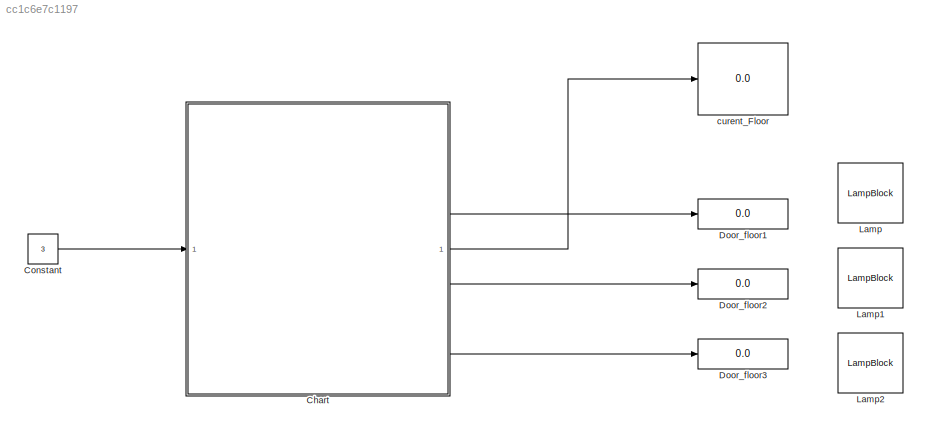
MODEL slx_cc1c6e7c1197
KIND model
CONFIG AbsTol = auto
CONFIG EnableMultiTasking = off
CONFIG FixedStep = auto
CONFIG MaxStep = auto
CONFIG MinStep = auto
CONFIG RelTol = 1e-3
CONFIG SampleTimeConstraint = Unconstrained
CONFIG SolverName = VariableStepAuto
CONFIG StartTime = 0.0
CONFIG StopTime = inf
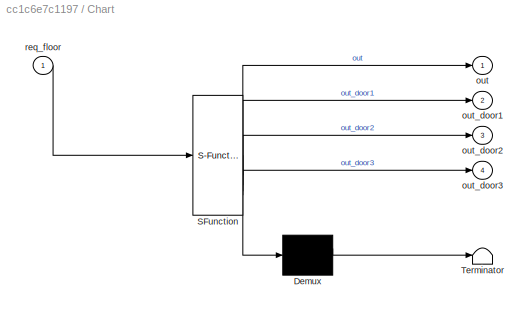
BLOCK [SubSystem] Chart
  ErrorFcn = Stateflow.Translate.translate
  PermitHierarchicalResolution = ExplicitOnly
  SFBlockType = Chart
  TreatAsAtomicUnit = on
BLOCK [Demux] Chart/ Demux 
  Outputs = 1
BLOCK [S-Function] Chart/ SFunction 
  EnableBusSupport = on
  FunctionName = sf_sfun
  PortCounts = [1 5]
  SFcnIsStateOwnerBlock = off
  SFunctionDeploymentMode = off
  Tag = Stateflow S-Function 3
BLOCK [Terminator] Chart/ Terminator 
BLOCK [Outport] Chart/out
BLOCK [Outport] Chart/out_door1
  Port = 2
BLOCK [Outport] Chart/out_door2
  Port = 3
BLOCK [Outport] Chart/out_door3
  Port = 4
BLOCK [Inport] Chart/req_floor
BLOCK [Constant] Constant
  Value = 3
BLOCK [Display] Door_floor1
  Decimation = 1
BLOCK [Display] Door_floor2
  Decimation = 1
BLOCK [Display] Door_floor3
  Decimation = 1
BLOCK [LampBlock] Lamp
  LabelPosition = Hide
BLOCK [LampBlock] Lamp1
  LabelPosition = Hide
BLOCK [LampBlock] Lamp2
  LabelPosition = Hide
BLOCK [Display] curent_Floor 
  Decimation = 1
LINE Chart:1 -> curent_Floor :1
LINE Chart:2 -> Door_floor1:1
LINE Chart:3 -> Door_floor2:1
LINE Chart:4 -> Door_floor3:1
LINE Constant:1 -> Chart:1
CHART Chart states=3 transitions=7
  STATE_LABEL 'Floor1\n  entry:\n    current_floor = 1;\n    out= current_floor\n    if (current_floor ==1)\n        door_floor1 = 1;\n        out_door1 = door_floor1;\n    end\n  during:\n    if after(5, sec)\n        door_floor1 = 0;\n        out_door1 = door_floor1;\n    end\nexit:\n    door_floor1 = 0;\n    out_door1 = door_floor1;'
  STATE_LABEL 'Floor2\n  entry:\n    current_floor = 2;\n    out = current_floor\n    door_floor1 = 0;\n    door_floor2 = 1;\n    out_door2 = door_floor2;\n  during:\n    if after(5, sec)\n        door_floor2 = 0;\n        out_door2 = door_floor2;\n    end'
  STATE_LABEL 'Floor3_\n  entry:\n    current_floor = 3;\n    out = current_floor\n    door_floor3 = 1;\n    out_door3 = door_floor3;\n  during:\n    if after(5, sec)\n        door_floor3 = 0;\n        out_door3 = door_floor3;\n    end\n'
CHART  states=0 transitions=0
